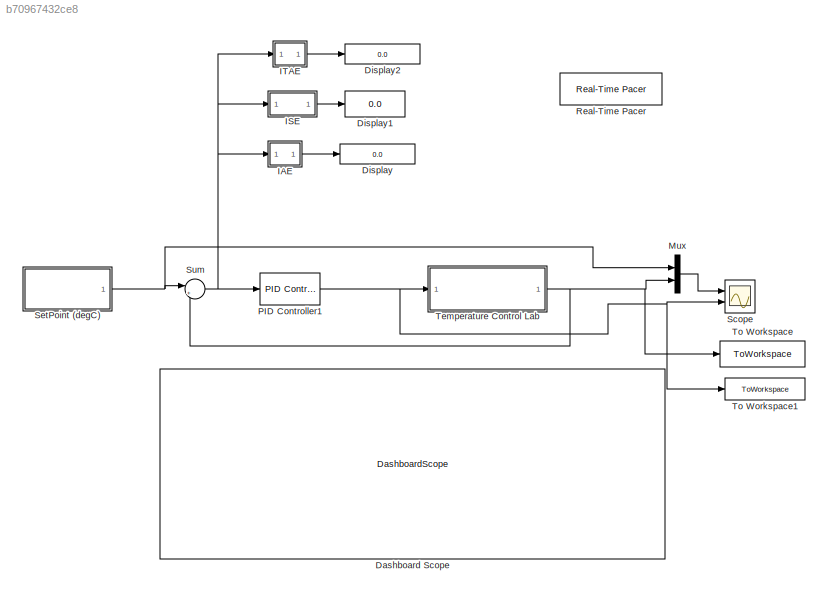
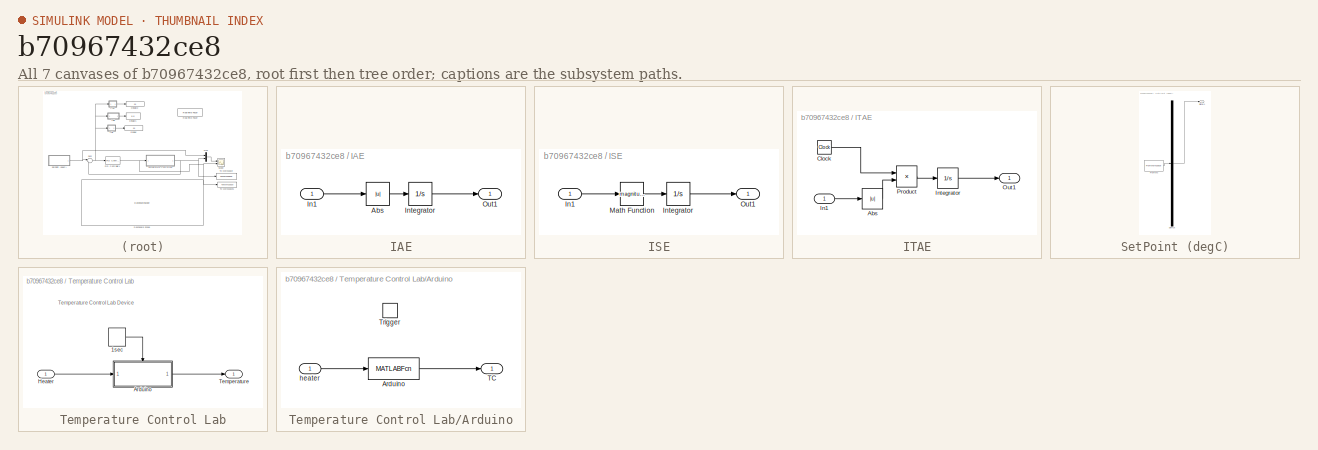
[diagram: thumbnail index - all 7 canvases of the model, root first then tree order]
MODEL slx_b70967432ce8
KIND model
CONFIG AbsTol = auto
CONFIG EnableMultiTasking = off
CONFIG FixedStep = auto
CONFIG MaxStep = auto
CONFIG MinStep = auto
CONFIG RelTol = 1e-3
CONFIG SampleTimeConstraint = Unconstrained
CONFIG SolverName = VariableStepAuto
CONFIG StartTime = 0.0
CONFIG StopTime = 1200
BLOCK [DashboardScope] Dashboard Scope
  ScaleAtStop = off
  Ymax = 90
  Ymin = 23
BLOCK [Display] Display
  Decimation = 1
  Ports = [1]
BLOCK [Display] Display1
  Decimation = 1
  Ports = [1]
BLOCK [Display] Display2
  Decimation = 1
  Ports = [1]
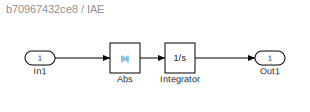
BLOCK [SubSystem] IAE
  Ports = [1, 1]
  RequestExecContextInheritance = off
BLOCK [Abs] IAE/Abs
  SaturateOnIntegerOverflow = off
BLOCK [Inport] IAE/In1
BLOCK [Integrator] IAE/Integrator
  Ports = [1, 1]
BLOCK [Outport] IAE/Out1
BLOCK [SubSystem] ISE
  Ports = [1, 1]
  RequestExecContextInheritance = off
BLOCK [Inport] ISE/In1
BLOCK [Integrator] ISE/Integrator
  Ports = [1, 1]
BLOCK [Math] ISE/Math Function
  Operator = magnitude^2
  Ports = [1, 1]
BLOCK [Outport] ISE/Out1
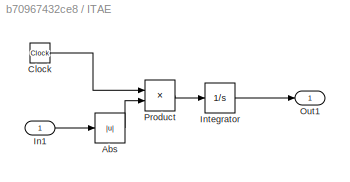
BLOCK [SubSystem] ITAE
  Ports = [1, 1]
  RequestExecContextInheritance = off
BLOCK [Abs] ITAE/Abs
  SaturateOnIntegerOverflow = off
BLOCK [Clock] ITAE/Clock
  Decimation = 1
BLOCK [Inport] ITAE/In1
BLOCK [Integrator] ITAE/Integrator
  Ports = [1, 1]
BLOCK [Outport] ITAE/Out1
BLOCK [Product] ITAE/Product
  Ports = [2, 1]
BLOCK [Mux] Mux
  DisplayOption = bar
  Inputs = 2
  Ports = [2, 1]
BLOCK [Reference] PID Controller1  REF=slpidlib/PID Controller
  Ports = [1, 1]
  SourceBlock = slpidlib/PID Controller
  SourceProductBaseCode = SL
  SourceType = PID 1dof
BLOCK [Reference] Real-Time Pacer  REF=realtime_pacer_lib/Real-Time Pacer
  Ports = []
  SourceBlock = realtime_pacer_lib/Real-Time Pacer
  SourceType = RealTime_Pacer
BLOCK [Scope] Scope
  Floating = off
  NumInputPorts = 2
  Ports = [2]
  ScopeSpecificationString = Simulink.scopes.TimeScopeBlockCfg('CurrentConfiguration', extmgr.ConfigurationSet(extmgr.Configuration('Core','General UI',true),extmgr.Configuration('Core','Source UI',true),extmgr.Configuration('Sources','WiredSimulink',true),extmgr.Configuration('Visuals','Time Domain',true,'SerializedDisplays',{struct('MinYLimReal','17.1125','MaxYLimReal','75.9875','YLabelReal','','MinYLimMag','17.1125','MaxYL...<+2051ch>
BLOCK [SubSystem] SetPoint (degC)
  ClipboardFcn = sigbuilder_block('clipboard');
  CloseFcn = sigbuilder_block('close');
  ContinueFcn = sigbuilder_block('continue');
  CopyFcn = sigbuilder_block('copy');
  DeleteFcn = sigbuilder_block('delete');
  LoadFcn = sigbuilder_block('load');
  MaskHideContents = on
  ModelCloseFcn = sigbuilder_block('modelClose');
  NameChangeFcn = sigbuilder_block('namechange');
  OpenFcn = sigbuilder_block('open',[53.4 0 1093.2 552.6 ]);
  PauseFcn = sigbuilder_block('pause');
  Ports = [0, 1]
  PreSaveFcn = sigbuilder_block('preSave');
  RequestExecContextInheritance = off
  StartFcn = sigbuilder_block('start');
  StopFcn = sigbuilder_block('stop');
  Tag = STV Subsys
BLOCK [Demux] SetPoint (degC)/Demux
  DisplayOption = none
  Outputs = 1
  Ports = [1, 1]
  Tag = STV Demux
BLOCK [FromWorkspace] SetPoint (degC)/FromWs
  Tag = STV FromWs
  VariableName = tuvar
BLOCK [Outport] SetPoint (degC)/Signal 1
  Tag = STV Outport
BLOCK [Sum] Sum
  Inputs = |+-
  Ports = [2, 1]
BLOCK [SubSystem] Temperature Control Lab
  Ports = [1, 1]
  RequestExecContextInheritance = off
BLOCK [DiscretePulseGenerator] Temperature Control Lab/1sec
  Period = 1
  Ports = [0, 1]
  PulseType = Time based
  PulseWidth = 50
BLOCK [SubSystem] Temperature Control Lab/Arduino
  Ports = [1, 1, 0, 1]
  RequestExecContextInheritance = off
  TreatAsAtomicUnit = on
BLOCK [MATLABFcn] Temperature Control Lab/Arduino/Arduino
  MATLABFcn = ControlLab_Lib
  Ports = [1, 1]
BLOCK [Outport] Temperature Control Lab/Arduino/TC
  InitialOutput = 23
  VectorParamsAs1DForOutWhenUnconnected = off
BLOCK [TriggerPort] Temperature Control Lab/Arduino/Trigger
  Ports = []
  StatesWhenEnabling = held
  VariantControl = Variant
BLOCK [Inport] Temperature Control Lab/Arduino/heater
  LatchByDelayingOutsideSignal = on
BLOCK [Inport] Temperature Control Lab/Heater
BLOCK [Outport] Temperature Control Lab/Temperature
  VectorParamsAs1DForOutWhenUnconnected = off
BLOCK [ToWorkspace] To Workspace
  FixptAsFi = on
  MaxDataPoints = inf
  Ports = [1]
  SampleTime = 1
  Save2DSignal = 2-D array (concatenate along first dimension)
  VariableName = tempPlanta
BLOCK [ToWorkspace] To Workspace1
  FixptAsFi = on
  MaxDataPoints = inf
  Ports = [1]
  SampleTime = 1
  Save2DSignal = 2-D array (concatenate along first dimension)
  VariableName = uPlanta
ANNOTATION Temperature Control Lab: Temperature Control Lab Device
LINE IAE/Abs:1 -> IAE/Integrator:1
LINE IAE/In1:1 -> IAE/Abs:1
LINE IAE/Integrator:1 -> IAE/Out1:1
LINE IAE:1 -> Display:1
LINE ISE/In1:1 -> ISE/Math Function:1
LINE ISE/Integrator:1 -> ISE/Out1:1
LINE ISE/Math Function:1 -> ISE/Integrator:1
LINE ISE:1 -> Display1:1
LINE ITAE/Abs:1 -> ITAE/Product:2
LINE ITAE/Clock:1 -> ITAE/Product:1
LINE ITAE/In1:1 -> ITAE/Abs:1
LINE ITAE/Integrator:1 -> ITAE/Out1:1
LINE ITAE/Product:1 -> ITAE/Integrator:1
LINE ITAE:1 -> Display2:1
LINE Mux:1 -> Scope:1
NET PID Controller1:1 -> Scope:2, Temperature Control Lab:1, To Workspace1:1
NET SetPoint (degC):1 -> Mux:1, Sum:1
NET Sum:1 -> IAE:1, ISE:1, ITAE:1, PID Controller1:1
LINE Temperature Control Lab/1sec:1 -> Temperature Control Lab/Arduino:trigger
LINE Temperature Control Lab/Arduino/Arduino:1 -> Temperature Control Lab/Arduino/TC:1
LINE Temperature Control Lab/Arduino/heater:1 -> Temperature Control Lab/Arduino/Arduino:1
LINE Temperature Control Lab/Arduino:1 -> Temperature Control Lab/Temperature:1
LINE Temperature Control Lab/Heater:1 -> Temperature Control Lab/Arduino:1
NET Temperature Control Lab:1 -> Mux:2, Sum:2, To Workspace:1
note: NET lines group one-source signal fan-out (src -> all destinations, sorted); 1:1 wires keep LINE
